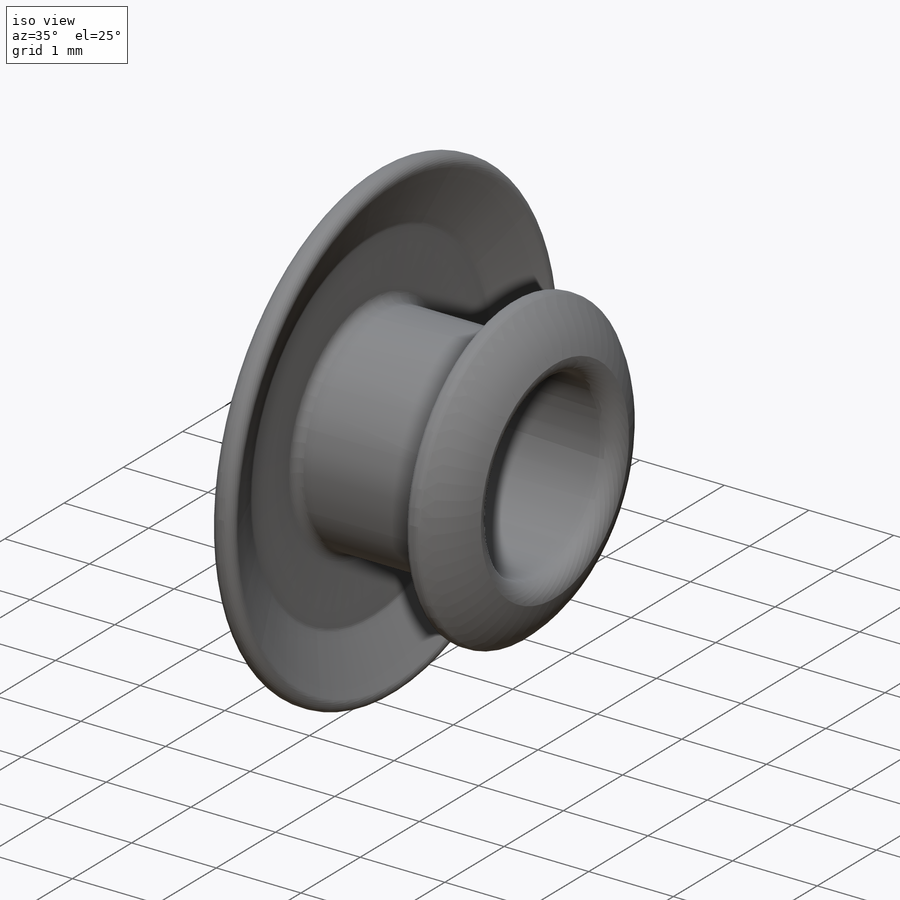
[diagram: iso view]
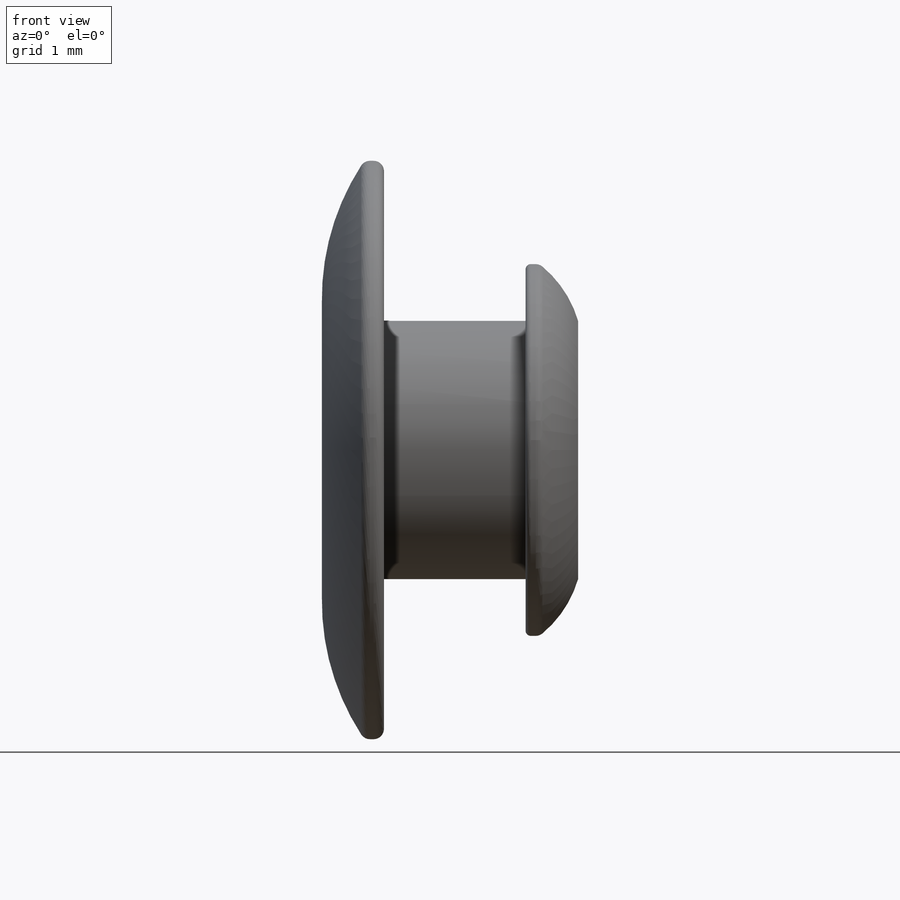
[diagram: front view]
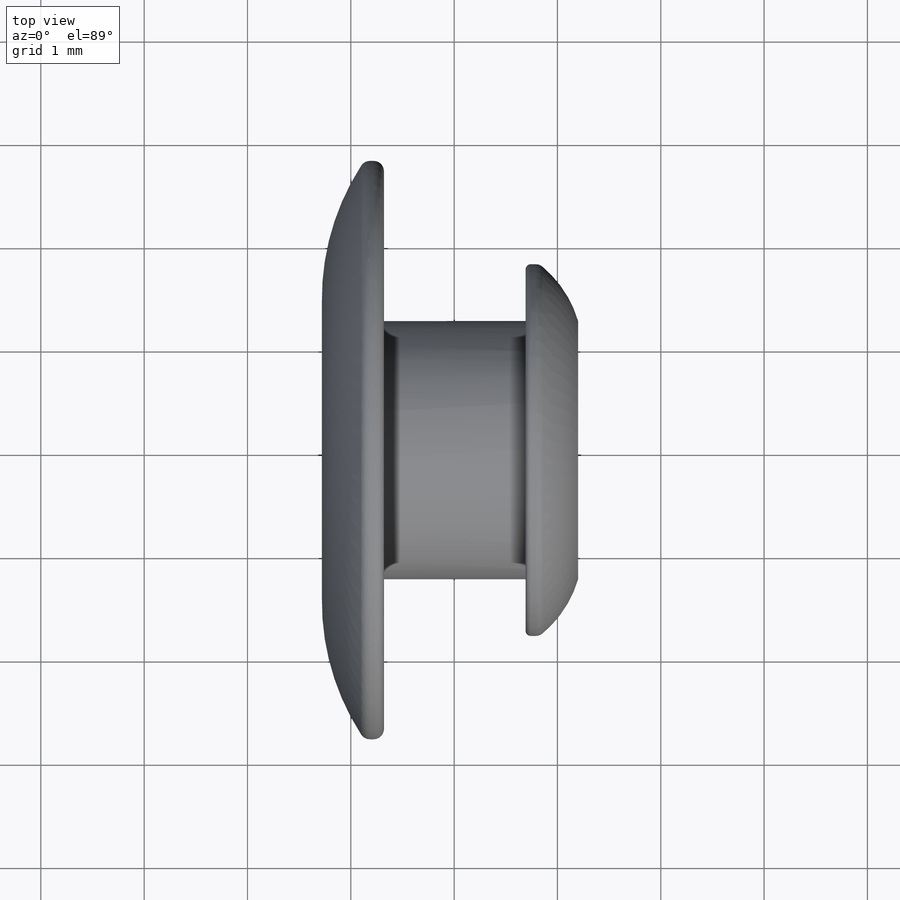
[diagram: top view]
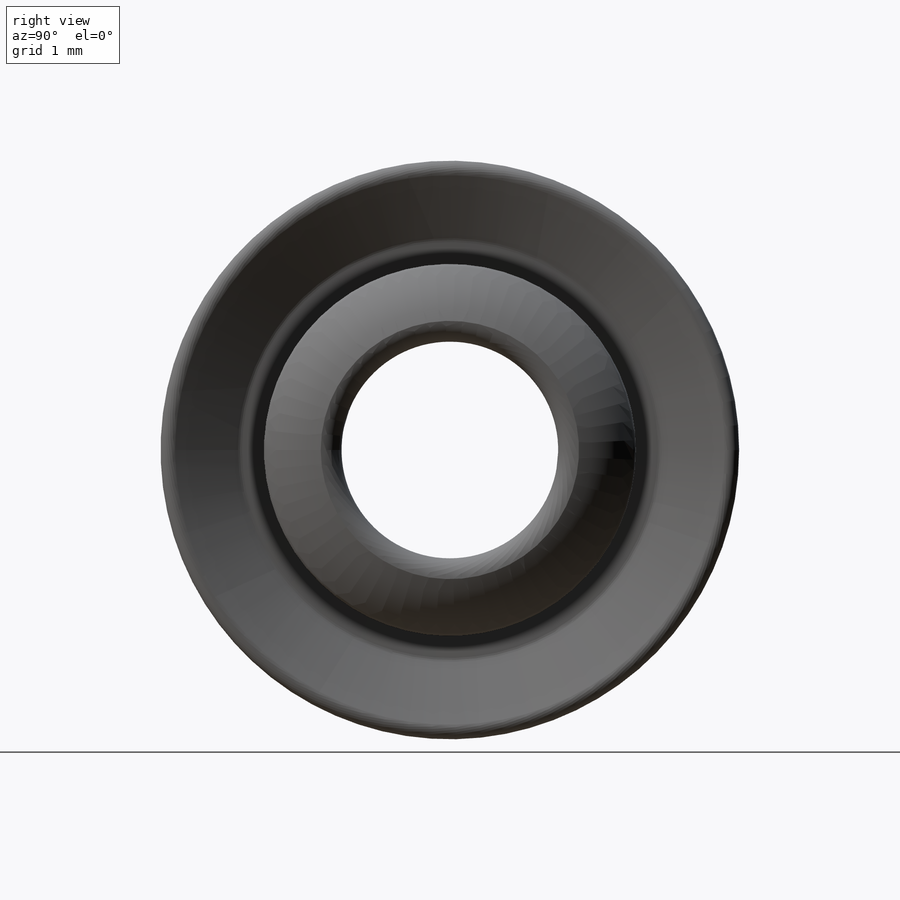
[diagram: right view]
SOLIDWORKS PART (.sldprt)
format: sldprt  version: not decoded by parser v0  size: 299,008 bytes
history: native  units: mm
features: plane x4, fillet x3, sketch x2, material x1, revolve x1 (+8 scaffold rows collapsed)
feature tree (19):
  scaffold x8  (default folders/planes/origin — collapsed)
  material  "Materiał <nieokreślony>"
  plane  "Płaszczyzna przednia"
  plane  "Płaszczyzna górna"
  plane  "Płaszczyzna prawa"
  plane  "Płaszczyzna1"
  sketch  "Szkic1"
  sketch  "Assoc1"  dims[D1=1.0mm D2=0.2mm]
  revolve  "Obrót1"  Angle=360deg
  fillet  "Zaokrąglenie1"  Radius=0.2mm
  fillet  "Zaokrąglenie2"  Radius=0.1mm
  fillet  "Zaokrąglenie3"  Radius=0.05mm
decode coverage: 5 of 6 modeling features carry decoded parameters
note: suppression state not decoded; provenance and decode notes live in map.json
